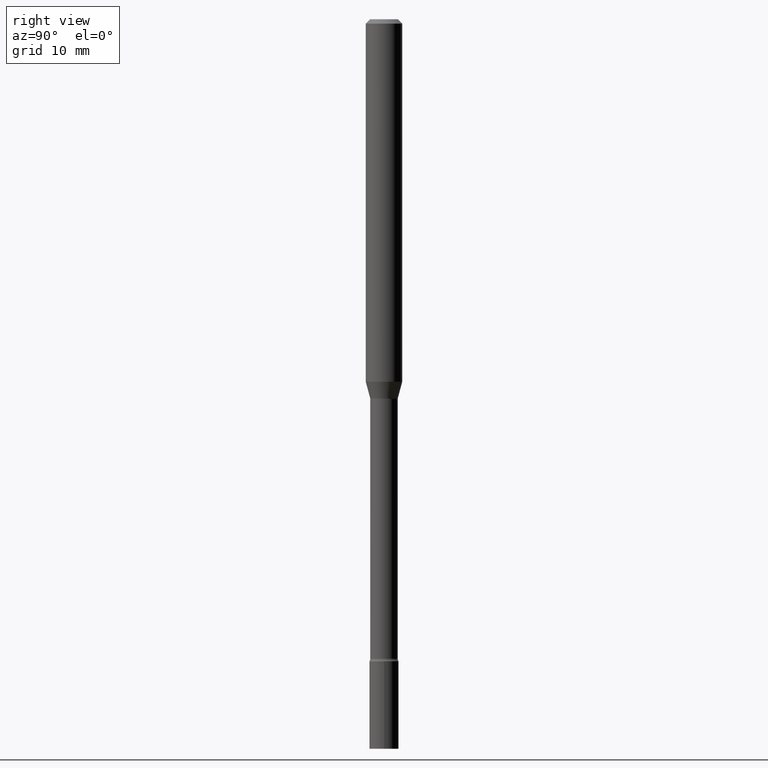
[diagram: clean part render]
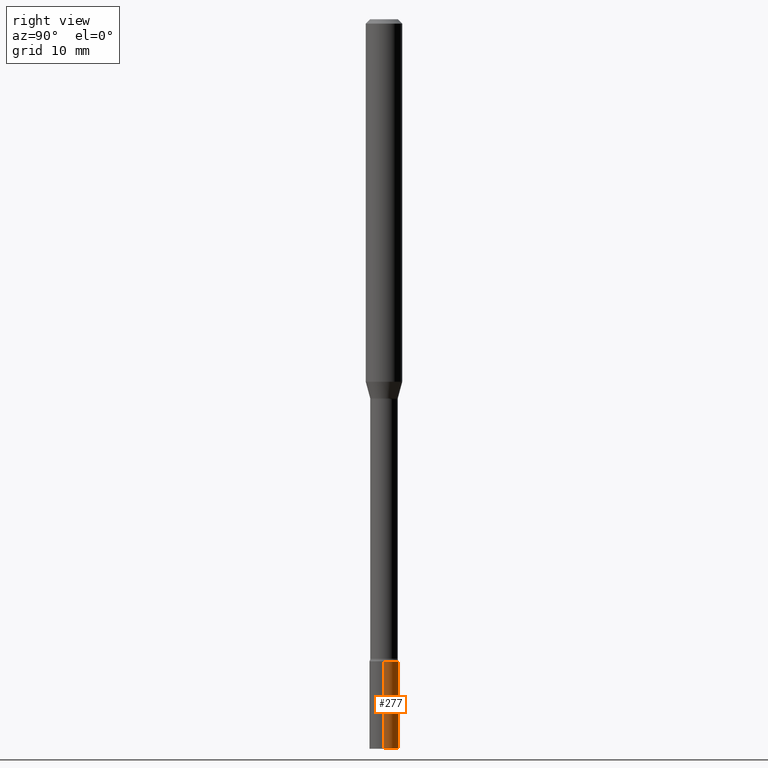
[diagram: same view with one face highlighted and labeled with its STEP entity id]
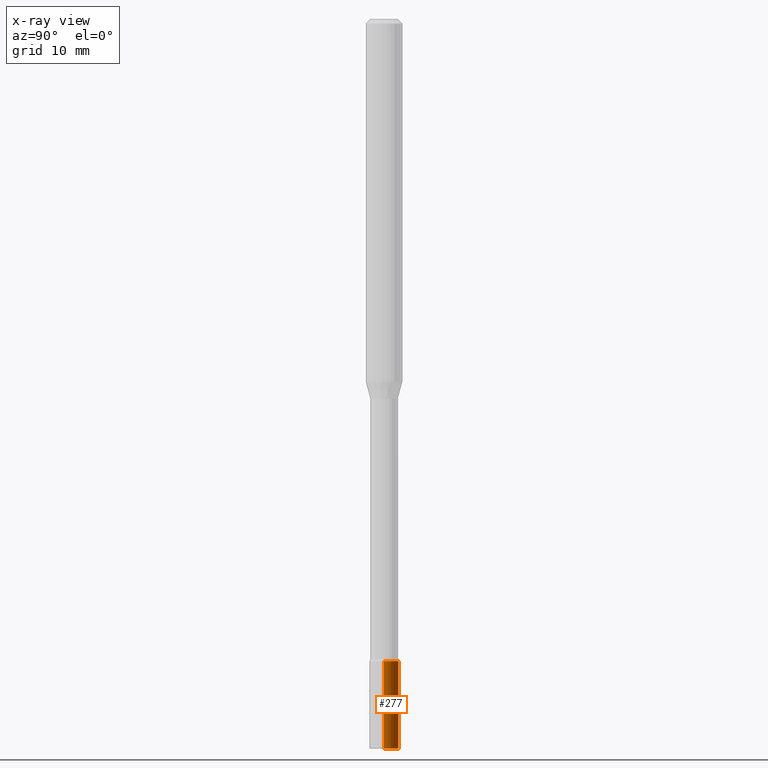
[diagram: x-ray of the same camera — body ghosted, the highlighted face saturated]
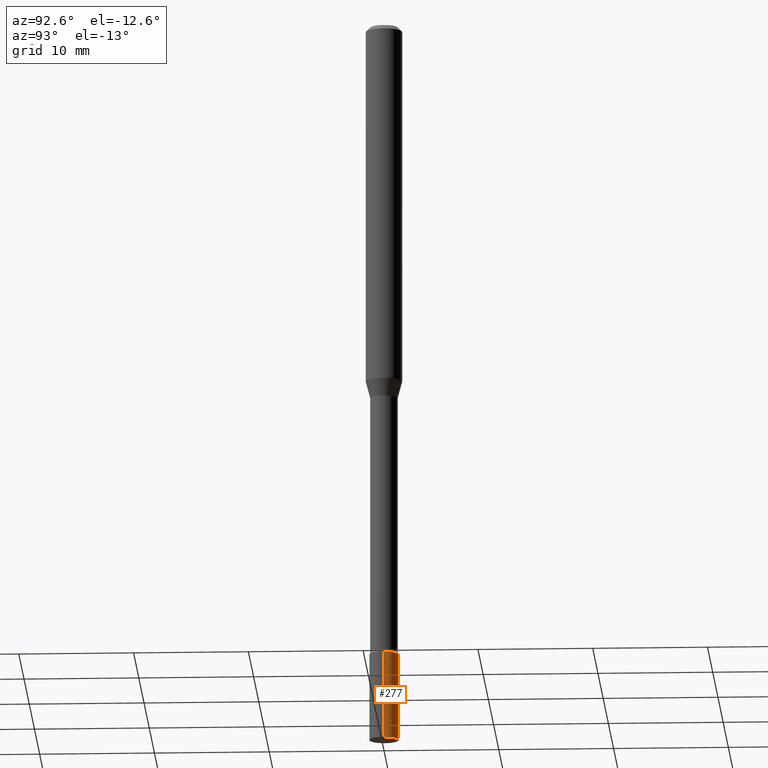
[diagram: same view with one face highlighted and labeled with its STEP entity id]
A machine part, right view. The second image highlights one B-rep face of the part: STEP entity #277.
The next image is the same camera in x-ray: the body ghosted, the highlighted face saturated — about 0% of this face is hidden behind the body in this view.
A second angle (auxiliary view) of the same face is appended — the face is thin or edge-on in the first view.
In plain terms, the highlighted cylindrical surface (edge-blend (fillet) strip) has radius 1.27 mm, axis along (-0, 0, 1).
Its self-contained STEP definition (entity closure, byte-faithful):
#11 = CARTESIAN_POINT ( 'NONE',  ( 0.000000000000000000, 0.000000000000000000, 0.000000000000000000 ) ) ;
#22 = CARTESIAN_POINT ( 'NONE',  ( 5.380031373607300737E-29, -7.681258945454920203E-15, -2.200000000000000178 ) ) ;
#54 = EDGE_CURVE ( 'NONE', #109, #149, #142, .T. ) ;
#67 = CARTESIAN_POINT ( 'NONE',  ( 6.113672015462842613E-29, -8.728703347107864943E-15, -2.500000000000000000 ) ) ;
#107 = VERTEX_POINT ( 'NONE', #227 ) ;
#109 = VERTEX_POINT ( 'NONE', #453 ) ;
#112 = AXIS2_PLACEMENT_3D ( 'NONE', #22, #196, #344 ) ;
#128 = CARTESIAN_POINT ( 'NONE',  ( -0.05000000000000000278, -7.849709778401342953E-15, -2.200000000000000178 ) ) ;
#142 = LINE ( 'NONE', #491, #405 ) ;
#149 = VERTEX_POINT ( 'NONE', #128 ) ;
#164 = DIRECTION ( 'NONE',  ( -2.445468806185136877E-29, 3.491481338843145188E-15, 1.000000000000000000 ) ) ;
#173 = CYLINDRICAL_SURFACE ( 'NONE', #383, 0.05000000000000000278 ) ;
#192 = ORIENTED_EDGE ( 'NONE', *, *, #211, .T. ) ;
#196 = DIRECTION ( 'NONE',  ( -2.445468806185136597E-29, 3.491481338843145583E-15, 1.000000000000000000 ) ) ;
#201 = AXIS2_PLACEMENT_3D ( 'NONE', #67, #379, #466 ) ;
#202 = EDGE_CURVE ( 'NONE', #107, #149, #229, .T. ) ;
#211 = EDGE_CURVE ( 'NONE', #228, #109, #290, .T. ) ;
#227 = CARTESIAN_POINT ( 'NONE',  ( 0.05000000000000000278, -8.030407079339233538E-15, -2.200000000000000178 ) ) ;
#228 = VERTEX_POINT ( 'NONE', #514 ) ;
#229 = CIRCLE ( 'NONE', #112, 0.05000000000000000278 ) ;
#254 = DIRECTION ( 'NONE',  ( -2.445468806185136597E-29, 3.491481338843145583E-15, 1.000000000000000000 ) ) ;
#277 = ADVANCED_FACE ( 'NONE', ( #308 ), #173, .T. ) ;
#290 = CIRCLE ( 'NONE', #201, 0.05000000000000000278 ) ;
#308 = FACE_OUTER_BOUND ( 'NONE', #519, .T. ) ;
#328 = ORIENTED_EDGE ( 'NONE', *, *, #54, .T. ) ;
#336 = CARTESIAN_POINT ( 'NONE',  ( 0.05000000000000000278, -3.491481338843133848E-16, 2.438088387897968247E-30 ) ) ;
#344 = DIRECTION ( 'NONE',  ( 1.000000000000000000, -6.982962677686274599E-15, 0.000000000000000000 ) ) ;
#363 = LINE ( 'NONE', #336, #517 ) ;
#367 = DIRECTION ( 'NONE',  ( 1.000000000000000000, -6.982962677686267499E-15, 4.876176775795936353E-29 ) ) ;
#379 = DIRECTION ( 'NONE',  ( -2.445468806185136597E-29, 3.491481338843145583E-15, 1.000000000000000000 ) ) ;
#380 = DIRECTION ( 'NONE',  ( -2.445468806185136877E-29, 3.491481338843145188E-15, 1.000000000000000000 ) ) ;
#383 = AXIS2_PLACEMENT_3D ( 'NONE', #11, #254, #367 ) ;
#405 = VECTOR ( 'NONE', #380, 39.37007874015748143 ) ;
#453 = CARTESIAN_POINT ( 'NONE',  ( -0.05000000000000000278, -7.849709778401342953E-15, -2.500000000000000000 ) ) ;
#466 = DIRECTION ( 'NONE',  ( 1.000000000000000000, -6.982962677686274599E-15, 0.000000000000000000 ) ) ;
#478 = EDGE_CURVE ( 'NONE', #228, #107, #363, .T. ) ;
#491 = CARTESIAN_POINT ( 'NONE',  ( -0.05000000000000000278, 3.552713678800501127E-16, -2.459467545127453311E-30 ) ) ;
#504 = ORIENTED_EDGE ( 'NONE', *, *, #478, .F. ) ;
#514 = CARTESIAN_POINT ( 'NONE',  ( 0.05000000000000000278, -9.077851480992178278E-15, -2.500000000000000000 ) ) ;
#515 = ORIENTED_EDGE ( 'NONE', *, *, #202, .F. ) ;
#517 = VECTOR ( 'NONE', #164, 39.37007874015748143 ) ;
#519 = EDGE_LOOP ( 'NONE', ( #192, #328, #515, #504 ) ) ;